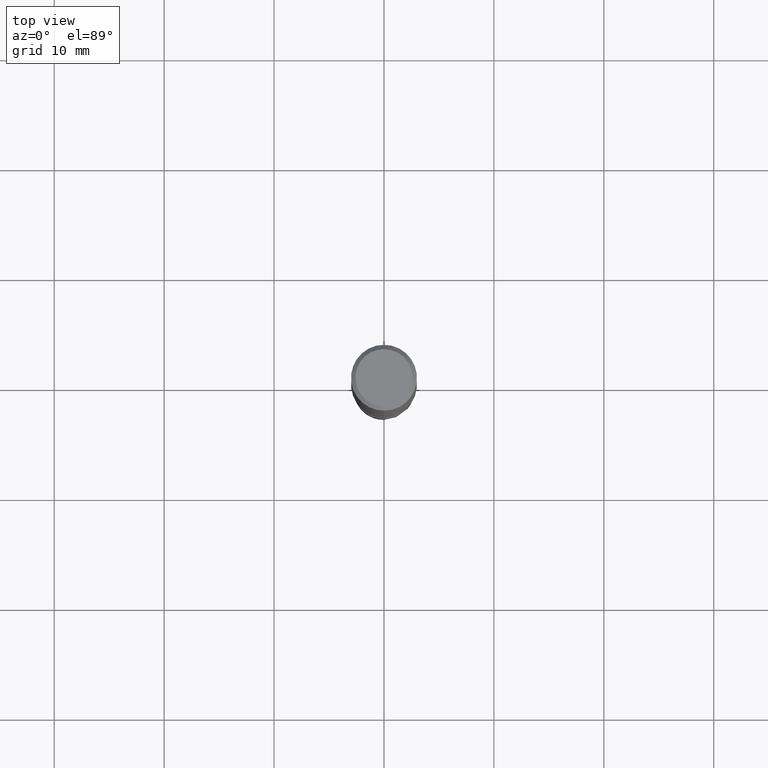
[diagram: clean part render]
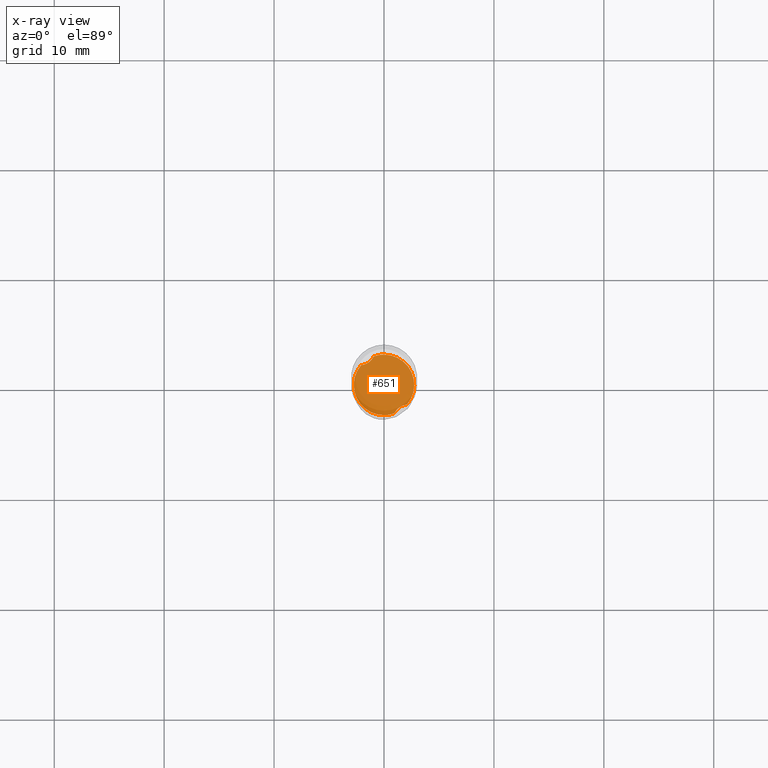
[diagram: x-ray — body ghosted, one internal face saturated and labeled with its STEP entity id]
A machine part, top view, then the same camera in x-ray: the body is ghosted and one INTERNAL B-rep face — a face not visible from any outside direction — is saturated and labeled: STEP entity #651.
In plain terms, the highlighted planar face has unit normal (-0, 0, 1).
Its self-contained STEP definition (entity closure, byte-faithful):
#303=VERTEX_POINT('',#796);
#405=VERTEX_POINT('',#905);
#439=EDGE_CURVE('',#461,#561,#942,.T.);
#445=EDGE_CURVE('',#545,#561,#949,.T.);
#461=VERTEX_POINT('',#967);
#545=VERTEX_POINT('',#1063);
#561=VERTEX_POINT('',#1080);
#565=EDGE_CURVE('',#405,#609,#1084,.T.);
#609=VERTEX_POINT('',#1131);
#651=ADVANCED_FACE('',(#1177),#1178,.T.);
#659=EDGE_CURVE('',#545,#303,#1186,.T.);
#711=EDGE_CURVE('',#303,#609,#1244,.T.);
#713=EDGE_CURVE('',#405,#461,#1246,.T.);
#796=CARTESIAN_POINT('',(3.37109659460138E-016,-2.7499,-38.0));
#905=CARTESIAN_POINT('',(-0.939163264449417,2.58455457917002,-38.0));
#942=CIRCLE('',#1983,2.7499);
#949=B_SPLINE_CURVE_WITH_KNOTS('',3,(#1993,#1994,#1995,#1996,#1997,#1998,#1999,#2000,#2001,#2002,#2003,#2004),.UNSPECIFIED.,.F.,.F.,(4,2,2,2,2,4),(0.0,0.600507107681517,1.14766080627869,1.6969593206615,2.05500112937718,2.42913767670562),.UNSPECIFIED.);
#967=CARTESIAN_POINT('',(-3.37543340327196E-016,2.7499,-38.0));
#1063=CARTESIAN_POINT('',(0.939163264449412,-2.58455457917002,-38.0));
#1080=CARTESIAN_POINT('',(2.08250782544948,-1.79585945077606,-38.0));
#1084=B_SPLINE_CURVE_WITH_KNOTS('',3,(#3770,#3771,#3772,#3773,#3774,#3775,#3776,#3777,#3778,#3779,#3780,#3781),.UNSPECIFIED.,.F.,.F.,(4,2,2,2,2,4),(0.0,0.600507107681523,1.14766080627871,1.69695932066154,2.0550011293772,2.42913767670557),.UNSPECIFIED.);
#1131=CARTESIAN_POINT('',(-2.08250782544948,1.79585945077606,-38.0));
#1177=FACE_OUTER_BOUND('',#4832,.T.);
#1178=PLANE('',#4833);
#1186=CIRCLE('',#4870,2.7499);
#1244=CIRCLE('',#5034,2.7499);
#1246=CIRCLE('',#5037,2.7499);
#1983=AXIS2_PLACEMENT_3D('',#5334,#5335,#5336);
#1993=CARTESIAN_POINT('',(0.853115501800642,-2.7999,-38.0));
#1994=CARTESIAN_POINT('',(0.913884384923483,-2.60917825038902,-38.0));
#1995=CARTESIAN_POINT('',(1.00813745770233,-2.4322305583883,-37.9999999999913));
#1996=CARTESIAN_POINT('',(1.25502798283071,-2.14113055374928,-37.9999999999913));
#1997=CARTESIAN_POINT('',(1.39751366963704,-2.02792938038021,-38.0000000000005));
#1998=CARTESIAN_POINT('',(1.72218588875322,-1.86227241559848,-38.0000000000005));
#1999=CARTESIAN_POINT('',(1.89869053499001,-1.81300052820789,-38.0000000000001));
#2000=CARTESIAN_POINT('',(2.19934889223892,-1.78496219817584,-38.0000000000001));
#2001=CARTESIAN_POINT('',(2.31881921587391,-1.78775270939438,-38.0));
#2002=CARTESIAN_POINT('',(2.56061272880254,-1.81884481916273,-38.0));
#2003=CARTESIAN_POINT('',(2.68214691628587,-1.8481913552583,-38.0));
#2004=CARTESIAN_POINT('',(2.7999,-1.88903708025337,-38.0));
#3770=CARTESIAN_POINT('',(-0.853115501800641,2.7999,-38.0));
#3771=CARTESIAN_POINT('',(-0.913884384923483,2.60917825038902,-38.0));
#3772=CARTESIAN_POINT('',(-1.00813745770233,2.4322305583883,-37.9999999999913));
#3773=CARTESIAN_POINT('',(-1.25502798283071,2.14113055374928,-37.9999999999913));
#3774=CARTESIAN_POINT('',(-1.39751366963704,2.0279293803802,-38.0000000000005));
#3775=CARTESIAN_POINT('',(-1.72218588875322,1.86227241559848,-38.0000000000005));
#3776=CARTESIAN_POINT('',(-1.89869053499001,1.81300052820789,-38.0000000000001));
#3777=CARTESIAN_POINT('',(-2.1993488922389,1.78496219817585,-38.0000000000001));
#3778=CARTESIAN_POINT('',(-2.31881921587388,1.78775270939438,-38.0));
#3779=CARTESIAN_POINT('',(-2.56061272880255,1.81884481916273,-38.0));
#3780=CARTESIAN_POINT('',(-2.6821469162859,1.84819135525831,-38.0));
#3781=CARTESIAN_POINT('',(-2.7999,1.88903708025337,-38.0));
#4832=EDGE_LOOP('',(#5610,#5611,#5612,#5613,#5614,#5615));
#4833=AXIS2_PLACEMENT_3D('',#5616,#5617,#5618);
#4870=AXIS2_PLACEMENT_3D('',#5622,#5623,#5624);
#5034=AXIS2_PLACEMENT_3D('',#5691,#5692,#5693);
#5037=AXIS2_PLACEMENT_3D('',#5694,#5695,#5696);
#5334=CARTESIAN_POINT('',(0.0,0.0,-38.0));
#5335=DIRECTION('',(0.0,0.0,-1.0));
#5336=DIRECTION('',(0.0,1.0,0.0));
#5610=ORIENTED_EDGE('',*,*,#445,.T.);
#5611=ORIENTED_EDGE('',*,*,#439,.F.);
#5612=ORIENTED_EDGE('',*,*,#713,.F.);
#5613=ORIENTED_EDGE('',*,*,#565,.T.);
#5614=ORIENTED_EDGE('',*,*,#711,.F.);
#5615=ORIENTED_EDGE('',*,*,#659,.F.);
#5616=CARTESIAN_POINT('',(0.0,1.37495,-38.0));
#5617=DIRECTION('',(-0.0,0.0,1.0));
#5618=DIRECTION('',(0.0,-1.0,0.0));
#5622=CARTESIAN_POINT('',(0.0,0.0,-38.0));
#5623=DIRECTION('',(0.0,0.0,-1.0));
#5624=DIRECTION('',(0.0,1.0,0.0));
#5691=CARTESIAN_POINT('',(0.0,0.0,-38.0));
#5692=DIRECTION('',(0.0,0.0,-1.0));
#5693=DIRECTION('',(0.0,1.0,0.0));
#5694=CARTESIAN_POINT('',(0.0,0.0,-38.0));
#5695=DIRECTION('',(0.0,0.0,-1.0));
#5696=DIRECTION('',(0.0,1.0,0.0));